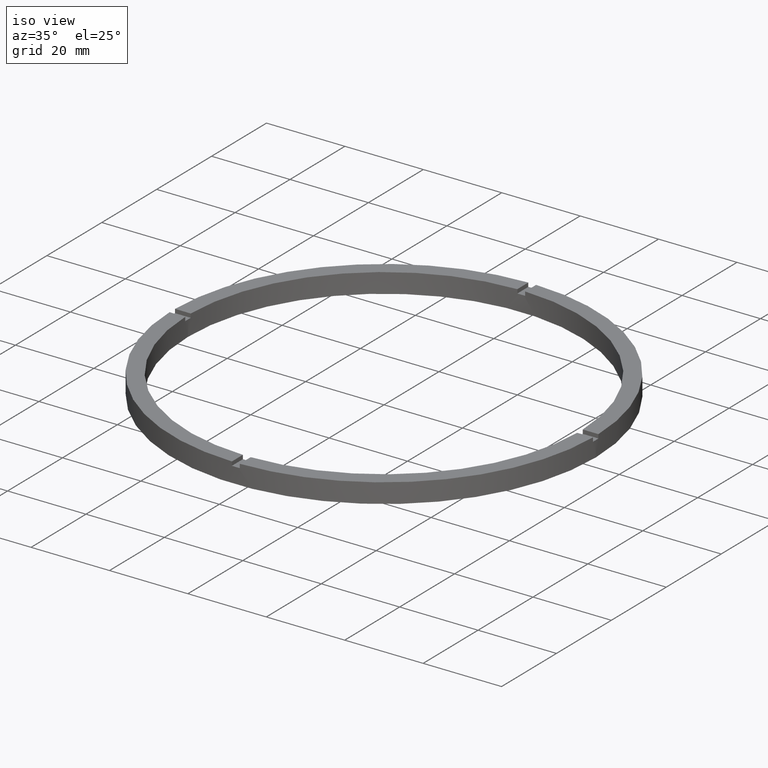
[diagram: clean part render]
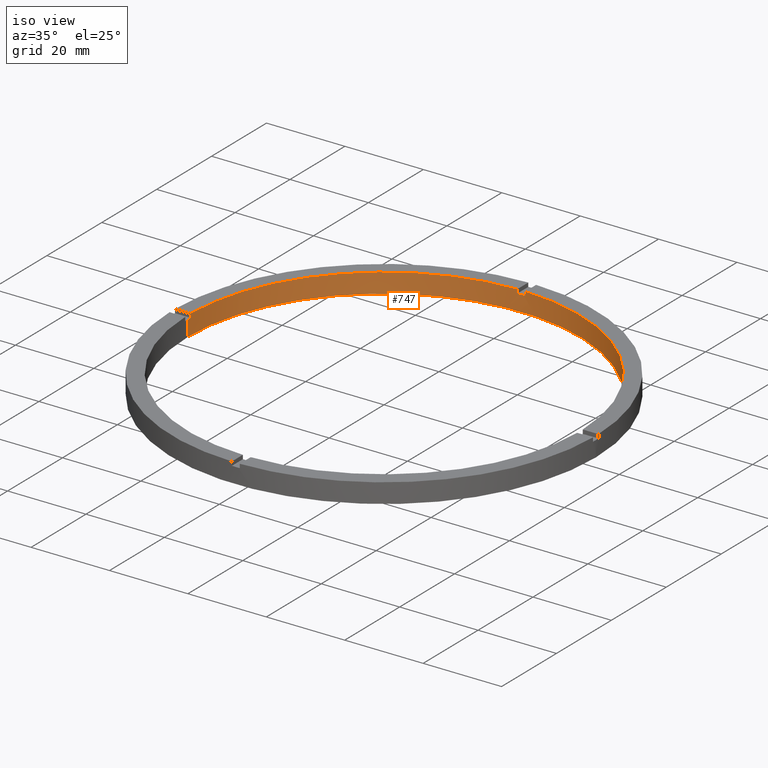
[diagram: same view with one face highlighted and labeled with its STEP entity id]
A machine part, iso view. The second image highlights one B-rep face of the part: STEP entity #747.
In plain terms, the highlighted cylindrical surface (partial cylindrical patch) has radius 50 mm, axis along (-0, -0, -1).
Its self-contained STEP definition (entity closure, byte-faithful):
#12 = AXIS2_PLACEMENT_3D ( 'NONE', #659, #216, #717 ) ;
#30 = LINE ( 'NONE', #606, #561 ) ;
#42 = CIRCLE ( 'NONE', #458, 50.00000000000000000 ) ;
#43 = AXIS2_PLACEMENT_3D ( 'NONE', #762, #215, #110 ) ;
#54 = ORIENTED_EDGE ( 'NONE', *, *, #128, .T. ) ;
#56 = ORIENTED_EDGE ( 'NONE', *, *, #377, .F. ) ;
#75 = AXIS2_PLACEMENT_3D ( 'NONE', #342, #402, #476 ) ;
#81 = CIRCLE ( 'NONE', #419, 50.00000000000000000 ) ;
#83 = CIRCLE ( 'NONE', #75, 50.00000000000000000 ) ;
#87 = LINE ( 'NONE', #764, #97 ) ;
#89 = CIRCLE ( 'NONE', #778, 50.00000000000000000 ) ;
#94 = CIRCLE ( 'NONE', #43, 50.00000000000000000 ) ;
#97 = VECTOR ( 'NONE', #773, 1000.000000000000000 ) ;
#107 = VECTOR ( 'NONE', #357, 1000.000000000000000 ) ;
#110 = DIRECTION ( 'NONE',  ( 1.000000000000000000, 0.000000000000000000, 0.000000000000000000 ) ) ;
#115 = VECTOR ( 'NONE', #665, 1000.000000000000000 ) ;
#128 = EDGE_CURVE ( 'NONE', #149, #759, #30, .T. ) ;
#149 = VERTEX_POINT ( 'NONE', #719 ) ;
#154 = CARTESIAN_POINT ( 'NONE',  ( 0.000000000000000000, 0.000000000000000000, 5.000000000000000000 ) ) ;
#177 = VERTEX_POINT ( 'NONE', #465 ) ;
#187 = DIRECTION ( 'NONE',  ( 1.000000000000000000, 0.000000000000000000, 0.000000000000000000 ) ) ;
#208 = ORIENTED_EDGE ( 'NONE', *, *, #537, .F. ) ;
#210 = VERTEX_POINT ( 'NONE', #592 ) ;
#213 = ORIENTED_EDGE ( 'NONE', *, *, #746, .F. ) ;
#215 = DIRECTION ( 'NONE',  ( 0.000000000000000000, 0.000000000000000000, 1.000000000000000000 ) ) ;
#216 = DIRECTION ( 'NONE',  ( 0.000000000000000000, 0.000000000000000000, 1.000000000000000000 ) ) ;
#218 = EDGE_LOOP ( 'NONE', ( #569, #291, #477, #748, #208, #585, #213, #310, #288, #478, #54, #56 ) ) ;
#220 = VERTEX_POINT ( 'NONE', #730 ) ;
#223 = VERTEX_POINT ( 'NONE', #756 ) ;
#238 = EDGE_CURVE ( 'NONE', #753, #223, #591, .T. ) ;
#253 = CARTESIAN_POINT ( 'NONE',  ( -49.98999899979995121, 0.9999999999999681366, 5.000000000000000000 ) ) ;
#257 = DIRECTION ( 'NONE',  ( 0.000000000000000000, 0.000000000000000000, 1.000000000000000000 ) ) ;
#269 = EDGE_CURVE ( 'NONE', #753, #220, #42, .T. ) ;
#287 = VECTOR ( 'NONE', #751, 1000.000000000000000 ) ;
#288 = ORIENTED_EDGE ( 'NONE', *, *, #768, .F. ) ;
#291 = ORIENTED_EDGE ( 'NONE', *, *, #269, .T. ) ;
#310 = ORIENTED_EDGE ( 'NONE', *, *, #512, .T. ) ;
#330 = VERTEX_POINT ( 'NONE', #253 ) ;
#342 = CARTESIAN_POINT ( 'NONE',  ( 0.000000000000000000, 0.000000000000000000, 4.000000000000000000 ) ) ;
#357 = DIRECTION ( 'NONE',  ( -0.000000000000000000, -0.000000000000000000, -1.000000000000000000 ) ) ;
#358 = VERTEX_POINT ( 'NONE', #647 ) ;
#368 = CYLINDRICAL_SURFACE ( 'NONE', #554, 50.00000000000000000 ) ;
#377 = EDGE_CURVE ( 'NONE', #223, #759, #94, .T. ) ;
#387 = CARTESIAN_POINT ( 'NONE',  ( -49.98999899979995121, 0.9999999999999681366, 4.000000000000000000 ) ) ;
#396 = EDGE_CURVE ( 'NONE', #470, #358, #83, .T. ) ;
#400 = EDGE_CURVE ( 'NONE', #210, #177, #81, .T. ) ;
#402 = DIRECTION ( 'NONE',  ( 0.000000000000000000, -0.000000000000000000, 1.000000000000000000 ) ) ;
#419 = AXIS2_PLACEMENT_3D ( 'NONE', #453, #588, #573 ) ;
#432 = CARTESIAN_POINT ( 'NONE',  ( -1.000000000000027311, 49.98999899979995121, 5.000000000000000000 ) ) ;
#453 = CARTESIAN_POINT ( 'NONE',  ( 0.000000000000000000, 0.000000000000000000, 5.000000000000000000 ) ) ;
#458 = AXIS2_PLACEMENT_3D ( 'NONE', #534, #531, #187 ) ;
#465 = CARTESIAN_POINT ( 'NONE',  ( 0.9999999999999726885, 49.98999899979995121, 5.000000000000000000 ) ) ;
#469 = CARTESIAN_POINT ( 'NONE',  ( -50.00000000000000000, 0.000000000000000000, 0.000000000000000000 ) ) ;
#470 = VERTEX_POINT ( 'NONE', #654 ) ;
#476 = DIRECTION ( 'NONE',  ( 1.000000000000000000, 0.000000000000000000, 0.000000000000000000 ) ) ;
#477 = ORIENTED_EDGE ( 'NONE', *, *, #640, .F. ) ;
#478 = ORIENTED_EDGE ( 'NONE', *, *, #634, .T. ) ;
#490 = DIRECTION ( 'NONE',  ( -0.000000000000000000, -0.000000000000000000, -1.000000000000000000 ) ) ;
#491 = VERTEX_POINT ( 'NONE', #737 ) ;
#512 = EDGE_CURVE ( 'NONE', #491, #330, #89, .T. ) ;
#520 = DIRECTION ( 'NONE',  ( 1.000000000000000000, 0.000000000000000000, 0.000000000000000000 ) ) ;
#531 = DIRECTION ( 'NONE',  ( 0.000000000000000000, 0.000000000000000000, 1.000000000000000000 ) ) ;
#534 = CARTESIAN_POINT ( 'NONE',  ( 0.000000000000000000, 0.000000000000000000, 4.000000000000000000 ) ) ;
#537 = EDGE_CURVE ( 'NONE', #470, #177, #625, .T. ) ;
#538 = CARTESIAN_POINT ( 'NONE',  ( 50.00000000000000000, 6.123233995736766085E-15, 5.000000000000000000 ) ) ;
#548 = DIRECTION ( 'NONE',  ( 0.000000000000000000, 0.000000000000000000, 1.000000000000000000 ) ) ;
#554 = AXIS2_PLACEMENT_3D ( 'NONE', #673, #490, #749 ) ;
#561 = VECTOR ( 'NONE', #617, 1000.000000000000000 ) ;
#569 = ORIENTED_EDGE ( 'NONE', *, *, #238, .F. ) ;
#573 = DIRECTION ( 'NONE',  ( 1.000000000000000000, 0.000000000000000000, 0.000000000000000000 ) ) ;
#585 = ORIENTED_EDGE ( 'NONE', *, *, #396, .T. ) ;
#588 = DIRECTION ( 'NONE',  ( 0.000000000000000000, 0.000000000000000000, 1.000000000000000000 ) ) ;
#591 = LINE ( 'NONE', #538, #287 ) ;
#592 = CARTESIAN_POINT ( 'NONE',  ( 49.98999899979995831, 0.9999999999998454570, 5.000000000000000000 ) ) ;
#599 = VECTOR ( 'NONE', #257, 1000.000000000000000 ) ;
#606 = CARTESIAN_POINT ( 'NONE',  ( -50.00000000000000000, 0.000000000000000000, 5.000000000000000000 ) ) ;
#617 = DIRECTION ( 'NONE',  ( -0.000000000000000000, -0.000000000000000000, -1.000000000000000000 ) ) ;
#625 = LINE ( 'NONE', #645, #599 ) ;
#628 = CARTESIAN_POINT ( 'NONE',  ( -49.98999899979995121, 0.9999999999999681366, 5.000000000000000000 ) ) ;
#634 = EDGE_CURVE ( 'NONE', #685, #149, #637, .T. ) ;
#637 = CIRCLE ( 'NONE', #12, 50.00000000000000000 ) ;
#640 = EDGE_CURVE ( 'NONE', #210, #220, #87, .T. ) ;
#642 = LINE ( 'NONE', #628, #115 ) ;
#643 = FACE_OUTER_BOUND ( 'NONE', #218, .T. ) ;
#644 = LINE ( 'NONE', #432, #107 ) ;
#645 = CARTESIAN_POINT ( 'NONE',  ( 0.9999999999999726885, 49.98999899979995121, 5.000000000000000000 ) ) ;
#647 = CARTESIAN_POINT ( 'NONE',  ( -1.000000000000027311, 49.98999899979995121, 4.000000000000000000 ) ) ;
#652 = CARTESIAN_POINT ( 'NONE',  ( 50.00000000000000000, 6.123233995736766085E-15, 4.000000000000000000 ) ) ;
#654 = CARTESIAN_POINT ( 'NONE',  ( 0.9999999999999726885, 49.98999899979995121, 4.000000000000000000 ) ) ;
#659 = CARTESIAN_POINT ( 'NONE',  ( 0.000000000000000000, 0.000000000000000000, 4.000000000000000000 ) ) ;
#665 = DIRECTION ( 'NONE',  ( 0.000000000000000000, 0.000000000000000000, 1.000000000000000000 ) ) ;
#673 = CARTESIAN_POINT ( 'NONE',  ( 0.000000000000000000, 0.000000000000000000, 5.000000000000000000 ) ) ;
#685 = VERTEX_POINT ( 'NONE', #387 ) ;
#717 = DIRECTION ( 'NONE',  ( 1.000000000000000000, 0.000000000000000000, 0.000000000000000000 ) ) ;
#719 = CARTESIAN_POINT ( 'NONE',  ( -50.00000000000000000, 0.000000000000000000, 4.000000000000000000 ) ) ;
#730 = CARTESIAN_POINT ( 'NONE',  ( 49.98999899979995831, 0.9999999999998454570, 4.000000000000000000 ) ) ;
#737 = CARTESIAN_POINT ( 'NONE',  ( -1.000000000000027311, 49.98999899979995121, 5.000000000000000000 ) ) ;
#746 = EDGE_CURVE ( 'NONE', #491, #358, #644, .T. ) ;
#747 = ADVANCED_FACE ( 'NONE', ( #643 ), #368, .F. ) ;
#748 = ORIENTED_EDGE ( 'NONE', *, *, #400, .T. ) ;
#749 = DIRECTION ( 'NONE',  ( -1.000000000000000000, 0.000000000000000000, 0.000000000000000000 ) ) ;
#751 = DIRECTION ( 'NONE',  ( -0.000000000000000000, -0.000000000000000000, -1.000000000000000000 ) ) ;
#753 = VERTEX_POINT ( 'NONE', #652 ) ;
#756 = CARTESIAN_POINT ( 'NONE',  ( 50.00000000000000000, 6.123233995736766085E-15, 0.000000000000000000 ) ) ;
#759 = VERTEX_POINT ( 'NONE', #469 ) ;
#762 = CARTESIAN_POINT ( 'NONE',  ( 0.000000000000000000, 0.000000000000000000, 0.000000000000000000 ) ) ;
#764 = CARTESIAN_POINT ( 'NONE',  ( 49.98999899979995831, 0.9999999999998454570, 5.000000000000000000 ) ) ;
#768 = EDGE_CURVE ( 'NONE', #685, #330, #642, .T. ) ;
#773 = DIRECTION ( 'NONE',  ( -0.000000000000000000, -0.000000000000000000, -1.000000000000000000 ) ) ;
#778 = AXIS2_PLACEMENT_3D ( 'NONE', #154, #548, #520 ) ;